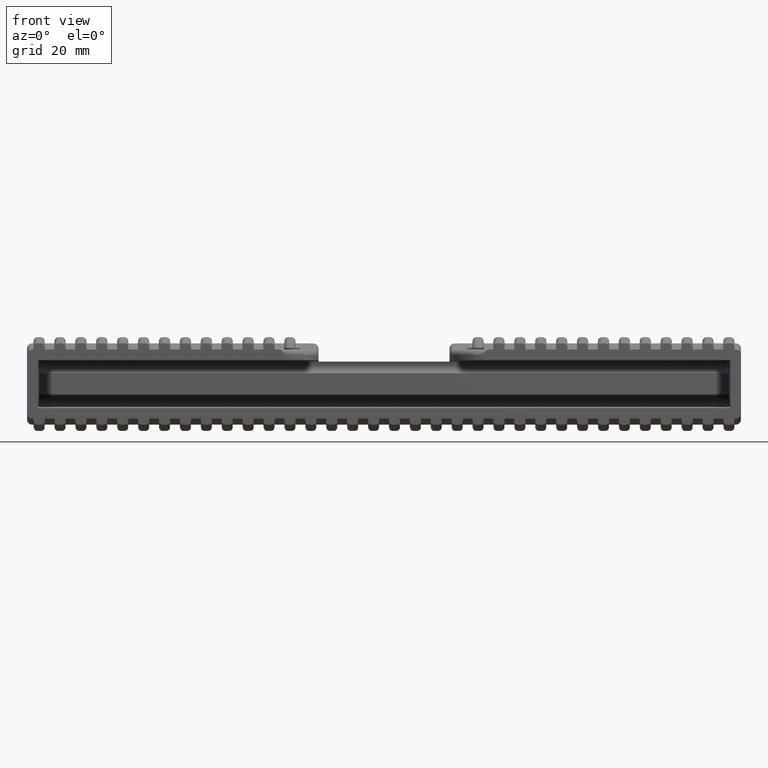
[diagram: clean part render]
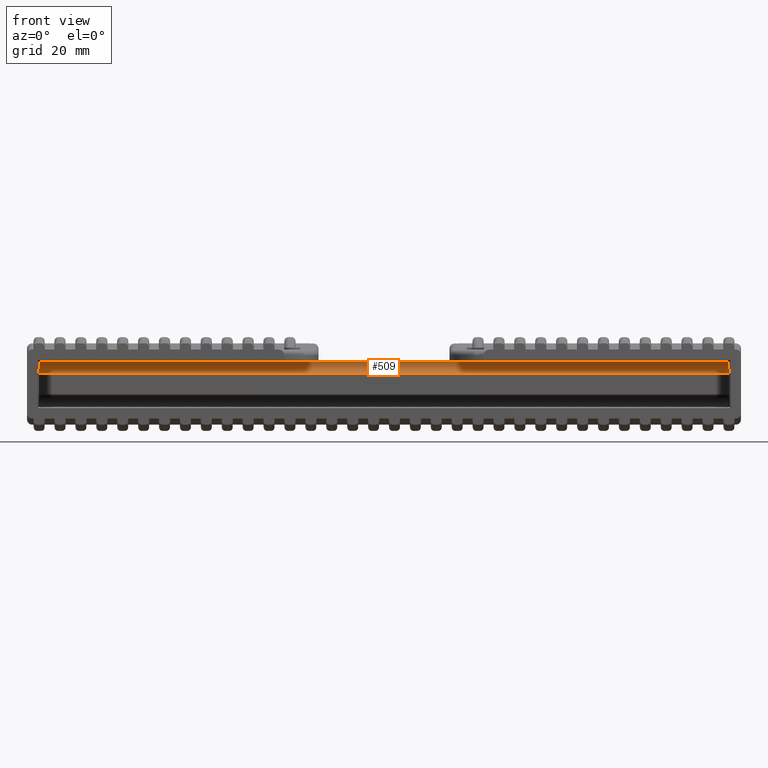
[diagram: same view with one face highlighted and labeled with its STEP entity id]
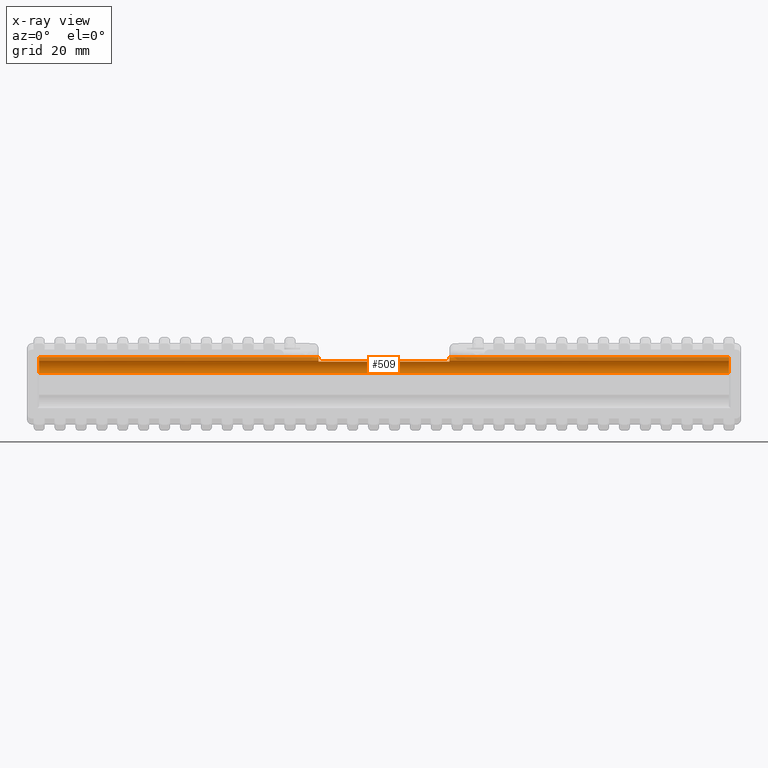
[diagram: x-ray of the same camera — body ghosted, the highlighted face saturated]
A machine part, front view. The second image highlights one B-rep face of the part: STEP entity #509.
The next image is the same camera in x-ray: the body ghosted, the highlighted face saturated — about 16% of this face is hidden behind the body in this view.
In plain terms, the highlighted cylindrical surface (edge-blend (fillet) strip) has radius 2.5 mm, axis along (1, 0, 0).
Its self-contained STEP definition (entity closure, byte-faithful):
#509 = ADVANCED_FACE( '', ( #1811 ), #1812, .F. );
#1811 = FACE_OUTER_BOUND( '', #4027, .T. );
#1812 = CYLINDRICAL_SURFACE( '', #4028, 2.50000000000000 );
#4027 = EDGE_LOOP( '', ( #7819, #7820, #7821, #7822, #7823, #7824, #7825, #7826 ) );
#4028 = AXIS2_PLACEMENT_3D( '', #7827, #7828, #7829 );
#7819 = ORIENTED_EDGE( '', *, *, #15800, .T. );
#7820 = ORIENTED_EDGE( '', *, *, #15778, .F. );
#7821 = ORIENTED_EDGE( '', *, *, #16231, .F. );
#7822 = ORIENTED_EDGE( '', *, *, #15805, .T. );
#7823 = ORIENTED_EDGE( '', *, *, #15641, .F. );
#7824 = ORIENTED_EDGE( '', *, *, #15605, .T. );
#7825 = ORIENTED_EDGE( '', *, *, #15612, .F. );
#7826 = ORIENTED_EDGE( '', *, *, #16232, .F. );
#7827 = CARTESIAN_POINT( '', ( 101.000000000000, 28.7979184719829, 5.29791847198287 ) );
#7828 = DIRECTION( '', ( 1.00000000000000, 3.31166777813623E-032, 1.80284751248131E-016 ) );
#7829 = DIRECTION( '', ( -1.80284751248131E-016, 1.83690953073357E-016, 1.00000000000000 ) );
#15605 = EDGE_CURVE( '', #18962, #18973, #18975, .T. );
#15612 = EDGE_CURVE( '', #18985, #18973, #18987, .F. );
#15641 = EDGE_CURVE( '', #18962, #19036, #19043, .F. );
#15778 = EDGE_CURVE( '', #19284, #19285, #19286, .F. );
#15800 = EDGE_CURVE( '', #19324, #19285, #19325, .F. );
#15805 = EDGE_CURVE( '', #19333, #19036, #19334, .T. );
#16231 = EDGE_CURVE( '', #19333, #19284, #20023, .F. );
#16232 = EDGE_CURVE( '', #19324, #18985, #20024, .F. );
#18962 = VERTEX_POINT( '', #24131 );
#18973 = VERTEX_POINT( '', #24145 );
#18975 = CIRCLE( '', #24148, 2.50000000000000 );
#18985 = VERTEX_POINT( '', #24160 );
#18987 = LINE( '', #24163, #24164 );
#19036 = VERTEX_POINT( '', #24248 );
#19043 = LINE( '', #24263, #24264 );
#19284 = VERTEX_POINT( '', #24938 );
#19285 = VERTEX_POINT( '', #24939 );
#19286 = ELLIPSE( '', #24940, 2.50038082010977, 2.50000000000000 );
#19324 = VERTEX_POINT( '', #24993 );
#19325 = LINE( '', #24994, #24995 );
#19333 = VERTEX_POINT( '', #25005 );
#19334 = CIRCLE( '', #25006, 2.50000000000000 );
#20023 = LINE( '', #26949, #26950 );
#20024 = ELLIPSE( '', #26951, 2.50038082010977, 2.50000000000000 );
#24131 = CARTESIAN_POINT( '', ( -19.0000000000000, 30.9899494936612, 6.49999999999997 ) );
#24145 = CARTESIAN_POINT( '', ( -19.0000000000000, 26.6390950285663, 6.55866481449395 ) );
#24148 = AXIS2_PLACEMENT_3D( '', #35849, #35850, #35851 );
#24160 = CARTESIAN_POINT( '', ( -100.058664814494, 26.6390950285663, 6.55866481449393 ) );
#24163 = CARTESIAN_POINT( '', ( 101.000000000000, 26.6390950285663, 6.55866481449396 ) );
#24164 = VECTOR( '', #35864, 1000.00000000000 );
#24248 = CARTESIAN_POINT( '', ( 19.0000000000000, 30.9899494936612, 6.49999999999999 ) );
#24263 = CARTESIAN_POINT( '', ( 101.000000000000, 30.9899494936612, 6.50000000000000 ) );
#24264 = VECTOR( '', #35907, 1000.00000000000 );
#24938 = CARTESIAN_POINT( '', ( 100.058664814494, 26.6390950285663, 6.55866481449396 ) );
#24939 = CARTESIAN_POINT( '', ( 100.000000000000, 30.0000000000000, 3.10588745030457 ) );
#24940 = AXIS2_PLACEMENT_3D( '', #36043, #36044, #36045 );
#24993 = CARTESIAN_POINT( '', ( -100.000000000000, 30.0000000000000, 3.10588745030453 ) );
#24994 = CARTESIAN_POINT( '', ( 101.000000000000, 30.0000000000000, 3.10588745030457 ) );
#24995 = VECTOR( '', #36079, 1000.00000000000 );
#25005 = CARTESIAN_POINT( '', ( 19.0000000000000, 26.6390950285663, 6.55866481449397 ) );
#25006 = AXIS2_PLACEMENT_3D( '', #36088, #36089, #36090 );
#26949 = CARTESIAN_POINT( '', ( 101.000000000000, 26.6390950285663, 6.55866481449396 ) );
#26950 = VECTOR( '', #36555, 1000.00000000000 );
#26951 = AXIS2_PLACEMENT_3D( '', #36556, #36557, #36558 );
#35849 = CARTESIAN_POINT( '', ( -19.0000000000000, 28.7979184719829, 5.29791847198284 ) );
#35850 = DIRECTION( '', ( 1.00000000000000, 2.24949108273321E-032, 1.22460635382238E-016 ) );
#35851 = DIRECTION( '', ( 0.000000000000000, 1.00000000000000, -1.83690953073357E-016 ) );
#35864 = DIRECTION( '', ( -1.00000000000000, -3.31166777813623E-032, -1.80284751248131E-016 ) );
#35907 = DIRECTION( '', ( -1.00000000000000, -3.31166777813623E-032, -1.80284751248131E-016 ) );
#36043 = CARTESIAN_POINT( '', ( 100.020982411121, 28.7979184719829, 5.29791847198287 ) );
#36044 = DIRECTION( '', ( 0.999847695156391, 0.0174524064372967, 1.22441984034318E-016 ) );
#36045 = DIRECTION( '', ( -0.0174524064372967, 0.999847695156391, -3.31538323548267E-015 ) );
#36079 = DIRECTION( '', ( -1.00000000000000, -3.31166777813623E-032, -1.80284751248131E-016 ) );
#36088 = CARTESIAN_POINT( '', ( 19.0000000000000, 28.7979184719829, 5.29791847198286 ) );
#36089 = DIRECTION( '', ( -1.00000000000000, -2.24949108273321E-032, -1.22460635382238E-016 ) );
#36090 = DIRECTION( '', ( 0.000000000000000, -1.00000000000000, 1.83690953073357E-016 ) );
#36555 = DIRECTION( '', ( -1.00000000000000, -3.31166777813623E-032, -1.80284751248131E-016 ) );
#36556 = CARTESIAN_POINT( '', ( -100.020982411121, 28.7979184719829, 5.29791847198282 ) );
#36557 = DIRECTION( '', ( -0.999847695156391, 0.0174524064373068, -1.22441984034317E-016 ) );
#36558 = DIRECTION( '', ( -0.0174524064373068, -0.999847695156391, -3.31538323548075E-015 ) );